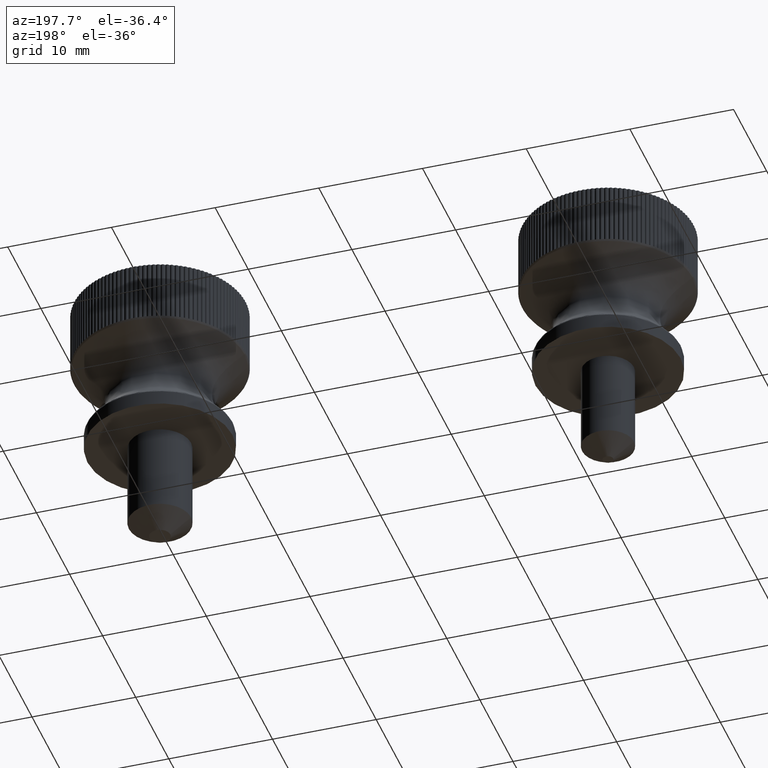
[diagram: clean part render]
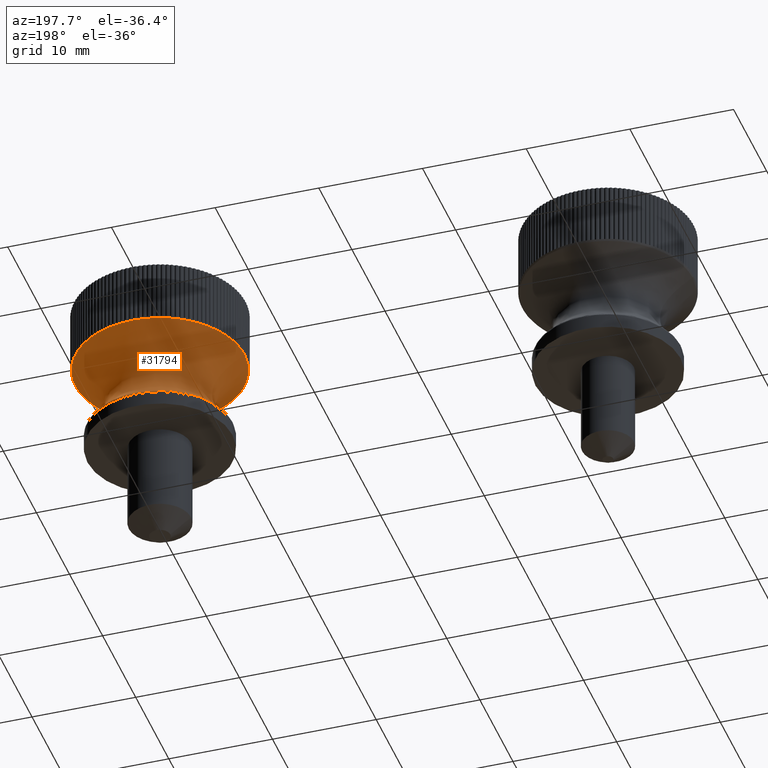
[diagram: same view with one face highlighted and labeled with its STEP entity id]
A machine part, auxiliary view. The second image highlights one B-rep face of the part: STEP entity #31794.
In plain terms, the highlighted face is a freeform B-spline surface patch.
Its self-contained STEP definition (entity closure, byte-faithful):
#3395=B_SPLINE_CURVE_WITH_KNOTS('',3,(#60871,#60872,#60873,#60874,#60875,
#60876,#60877,#60878,#60879,#60880),.UNSPECIFIED.,.T.,.F.,(4,1,1,1,1,1,
1,4),(0.,0.897597901025655,1.79519580205131,2.69279370307697,3.59039160410262,
4.48798950512828,5.38558740615393,6.28318530717959),.UNSPECIFIED.);
#3396=B_SPLINE_CURVE_WITH_KNOTS('',3,(#60950,#60951,#60952,#60953,#60954,
#60955),.UNSPECIFIED.,.F.,.F.,(4,2,4),(0.00706038556069299,0.438881228920565,
0.991385236136452),.UNSPECIFIED.);
#3397=B_SPLINE_CURVE_WITH_KNOTS('',3,(#60956,#60957,#60958,#60959,#60960,
#60961,#60962,#60963,#60964,#60965,#60966,#60967,#60968,#60969,#60970,#60971,
#60972),.UNSPECIFIED.,.T.,.F.,(4,1,1,1,1,1,1,1,1,1,1,1,1,1,4),(-3.14159265358979,
-2.69279370307697,-2.24399475256414,-1.79519580205131,-1.34639685153848,
-0.897597901025655,-0.448798950512828,-0.149599650170943,0.448798950512828,
0.897597901025655,1.34639685153848,1.79519580205131,2.24399475256414,2.69279370307697,
3.14159265358979),.UNSPECIFIED.);
#4606=B_SPLINE_SURFACE_WITH_KNOTS('',3,3,((#60881,#60882,#60883,#60884),
(#60885,#60886,#60887,#60888),(#60889,#60890,#60891,#60892),(#60893,#60894,
#60895,#60896),(#60897,#60898,#60899,#60900),(#60901,#60902,#60903,#60904),
(#60905,#60906,#60907,#60908),(#60909,#60910,#60911,#60912),(#60913,#60914,
#60915,#60916),(#60917,#60918,#60919,#60920),(#60921,#60922,#60923,#60924),
(#60925,#60926,#60927,#60928),(#60929,#60930,#60931,#60932),(#60933,#60934,
#60935,#60936),(#60937,#60938,#60939,#60940),(#60941,#60942,#60943,#60944),
(#60945,#60946,#60947,#60948)),.UNSPECIFIED.,.T.,.F.,.F.,(4,1,1,1,1,1,1,
1,1,1,1,1,1,1,4),(4,4),(-5.24696346380969E-33,0.0714285714285714,0.142857142857143,
0.214285714285714,0.285714285714286,0.357142857142857,0.428571428571429,
0.476190476190476,0.571428571428571,0.619047619047619,0.714285714285714,
0.785714285714286,0.857142857142857,0.928571428571429,1.),(0.00706038556069277,
0.991385236136452),.UNSPECIFIED.);
#7158=FACE_OUTER_BOUND('',#9342,.T.);
#9342=EDGE_LOOP('',(#25642,#25643,#25644,#25645));
#14054=VERTEX_POINT('',#60858);
#14056=VERTEX_POINT('',#60949);
#18039=EDGE_CURVE('',#14054,#14054,#3395,.T.);
#18040=EDGE_CURVE('',#14054,#14056,#3396,.T.);
#18041=EDGE_CURVE('',#14056,#14056,#3397,.T.);
#25642=ORIENTED_EDGE('',*,*,#18039,.F.);
#25643=ORIENTED_EDGE('',*,*,#18040,.T.);
#25644=ORIENTED_EDGE('',*,*,#18041,.F.);
#25645=ORIENTED_EDGE('',*,*,#18040,.F.);
#31794=ADVANCED_FACE('',(#7158),#4606,.T.);
#60858=CARTESIAN_POINT('',(-6.93627314721261,-1.18558281596421E-15,1.55888525799984));
#60871=CARTESIAN_POINT('Ctrl Pts',(-6.9410122677611,0.000142491652813912,
1.55888525799984));
#60872=CARTESIAN_POINT('Ctrl Pts',(-6.94073269133758,2.06964195002988,1.55888525799984));
#60873=CARTESIAN_POINT('Ctrl Pts',(-4.95034509371512,6.20569705457734,1.55888525799984));
#60874=CARTESIAN_POINT('Ctrl Pts',(1.76796414997845,7.74568170890814,1.55888525799984));
#60875=CARTESIAN_POINT('Ctrl Pts',(7.15027366841787,3.44311571488876,1.55888525799984));
#60876=CARTESIAN_POINT('Ctrl Pts',(7.15738775485074,-3.44652091877162,1.55888525799984));
#60877=CARTESIAN_POINT('Ctrl Pts',(1.76576836259289,-7.73728883380656,1.55888525799984));
#60878=CARTESIAN_POINT('Ctrl Pts',(-4.95202255225623,-6.21129969568504,
1.55888525799984));
#60879=CARTESIAN_POINT('Ctrl Pts',(-6.94129184418462,-2.06935696672425,
1.55888525799984));
#60880=CARTESIAN_POINT('Ctrl Pts',(-6.9410122677611,0.000142491652813912,
1.55888525799984));
#60881=CARTESIAN_POINT('Ctrl Pts',(-6.93659509277099,-2.64434204536289E-5,
1.55888525799984));
#60882=CARTESIAN_POINT('Ctrl Pts',(-3.99898448638526,-4.49854883233764E-5,
4.29342436986928));
#60883=CARTESIAN_POINT('Ctrl Pts',(-4.40387383724155,-5.47268835152633E-5,
6.75466806568818));
#60884=CARTESIAN_POINT('Ctrl Pts',(-8.15122335976201,-3.10737795189008E-5,
8.94261634545652));
#60885=CARTESIAN_POINT('Ctrl Pts',(-6.93655570876999,-1.03749061785009,
1.55888525799984));
#60886=CARTESIAN_POINT('Ctrl Pts',(-3.99898752326789,-0.598164021897022,
4.29342436986928));
#60887=CARTESIAN_POINT('Ctrl Pts',(-4.403881670935,-0.658734820782433,6.75466806568819));
#60888=CARTESIAN_POINT('Ctrl Pts',(-8.15117707944946,-1.2191597818023,8.94261634545652));
#60889=CARTESIAN_POINT('Ctrl Pts',(-6.46308137475766,-3.11256940948825,
1.55888525799984));
#60890=CARTESIAN_POINT('Ctrl Pts',(-3.72594845020308,-1.79440682829829,
4.29342436986928));
#60891=CARTESIAN_POINT('Ctrl Pts',(-4.10318422458277,-1.97608592128289,
6.75466806568818));
#60892=CARTESIAN_POINT('Ctrl Pts',(-7.59479531000307,-3.65759398381809,
8.94261634545651));
#60893=CARTESIAN_POINT('Ctrl Pts',(-4.47295872184112,-5.60896599974282,
1.55888525799984));
#60894=CARTESIAN_POINT('Ctrl Pts',(-2.57870061478446,-3.23378001637687,
4.29342436986928));
#60895=CARTESIAN_POINT('Ctrl Pts',(-2.83979175682371,-3.56122545468017,
6.75466806568817));
#60896=CARTESIAN_POINT('Ctrl Pts',(-5.25619343973525,-6.59112058145961,
8.9426163454565));
#60897=CARTESIAN_POINT('Ctrl Pts',(-1.59595728182452,-6.99323126397291,
1.55888525799984));
#60898=CARTESIAN_POINT('Ctrl Pts',(-0.920165162855635,-4.0314680861249,
4.29342436986927));
#60899=CARTESIAN_POINT('Ctrl Pts',(-1.01334528849677,-4.43961713355039,
6.75466806568817));
#60900=CARTESIAN_POINT('Ctrl Pts',(-1.8754164114823,-8.21777677329334,8.9426163454565));
#60901=CARTESIAN_POINT('Ctrl Pts',(1.59531222920229,-6.99348773614617,1.55888525799984));
#60902=CARTESIAN_POINT('Ctrl Pts',(0.91989036600288,-4.03156921862864,4.29342436986928));
#60903=CARTESIAN_POINT('Ctrl Pts',(1.01305959940466,-4.43972035678931,6.75466806568816));
#60904=CARTESIAN_POINT('Ctrl Pts',(1.87465840731279,-8.21807815487059,8.9426163454565));
#60905=CARTESIAN_POINT('Ctrl Pts',(4.47334228236746,-5.60797117948955,1.55888525799984));
#60906=CARTESIAN_POINT('Ctrl Pts',(2.57796903899002,-3.23303771902565,4.29342436986928));
#60907=CARTESIAN_POINT('Ctrl Pts',(2.83881996194001,-3.56037856671523,6.75466806568816));
#60908=CARTESIAN_POINT('Ctrl Pts',(5.25664416339439,-6.58995156381063,8.9426163454565));
#60909=CARTESIAN_POINT('Ctrl Pts',(6.23946520170621,-3.39020877999017,1.55888525799984));
#60910=CARTESIAN_POINT('Ctrl Pts',(3.59802952831995,-1.95423955104638,4.29342436986928));
#60911=CARTESIAN_POINT('Ctrl Pts',(3.9624876378636,-2.15206165405761,6.75466806568817));
#60912=CARTESIAN_POINT('Ctrl Pts',(7.33202296290484,-3.98384922751588,8.9426163454565));
#60913=CARTESIAN_POINT('Ctrl Pts',(7.17229747483685,-0.379481484938928,
1.55888525799984));
#60914=CARTESIAN_POINT('Ctrl Pts',(4.13396678016579,-0.219134788096569,
4.29342436986928));
#60915=CARTESIAN_POINT('Ctrl Pts',(4.55236562208221,-0.241384829866832,
6.75466806568816));
#60916=CARTESIAN_POINT('Ctrl Pts',(8.42819826415697,-0.445930359673868,
8.9426163454565));
#60917=CARTESIAN_POINT('Ctrl Pts',(6.74112220881939,2.47613920050433,1.55888525799984));
#60918=CARTESIAN_POINT('Ctrl Pts',(3.88650642503551,1.42786777823971,4.29342436986927));
#60919=CARTESIAN_POINT('Ctrl Pts',(4.28004475829902,1.57249940883918,6.75466806568817));
#60920=CARTESIAN_POINT('Ctrl Pts',(7.92152231529326,2.90972204997344,8.9426163454565));
#60921=CARTESIAN_POINT('Ctrl Pts',(4.76754469364469,5.36975566562131,1.55888525799984));
#60922=CARTESIAN_POINT('Ctrl Pts',(2.74886818005904,3.09555472852831,4.29342436986928));
#60923=CARTESIAN_POINT('Ctrl Pts',(3.02724725540437,3.40894945241564,6.75466806568816));
#60924=CARTESIAN_POINT('Ctrl Pts',(5.60236270905384,6.31002346719677,8.9426163454565));
#60925=CARTESIAN_POINT('Ctrl Pts',(1.9543276572283,6.99738667408694,1.55888525799984));
#60926=CARTESIAN_POINT('Ctrl Pts',(1.12617085742253,4.03385298858422,4.29342436986927));
#60927=CARTESIAN_POINT('Ctrl Pts',(1.24010458300473,4.4422416342415,6.75466806568817));
#60928=CARTESIAN_POINT('Ctrl Pts',(2.29653901361924,8.22265981396934,8.9426163454565));
#60929=CARTESIAN_POINT('Ctrl Pts',(-1.59757264271848,6.99173205713629,1.55888525799984));
#60930=CARTESIAN_POINT('Ctrl Pts',(-0.920660157411978,4.03073757760071,
4.29342436986928));
#60931=CARTESIAN_POINT('Ctrl Pts',(-1.01381431598822,4.43883599549537,6.75466806568816));
#60932=CARTESIAN_POINT('Ctrl Pts',(-1.87731462916363,8.21601504875496,8.9426163454565));
#60933=CARTESIAN_POINT('Ctrl Pts',(-4.47166126029394,5.60915551447088,1.55888525799984));
#60934=CARTESIAN_POINT('Ctrl Pts',(-2.57800781000917,3.23354607662608,4.29342436986928));
#60935=CARTESIAN_POINT('Ctrl Pts',(-2.83903843170414,3.56090797650199,6.75466806568817));
#60936=CARTESIAN_POINT('Ctrl Pts',(-5.25466878697257,6.59134328104892,8.9426163454565));
#60937=CARTESIAN_POINT('Ctrl Pts',(-6.46331767876363,3.11221563708956,1.55888525799984));
#60938=CARTESIAN_POINT('Ctrl Pts',(-3.72593022890732,1.7943073901539,4.29342436986928));
#60939=CARTESIAN_POINT('Ctrl Pts',(-4.10313722242205,1.97599464211061,6.75466806568817));
#60940=CARTESIAN_POINT('Ctrl Pts',(-7.59507299187836,3.65717826431859,8.9426163454565));
#60941=CARTESIAN_POINT('Ctrl Pts',(-6.93663447677198,1.03743773100918,1.55888525799984));
#60942=CARTESIAN_POINT('Ctrl Pts',(-3.99898144950263,0.598074050920375,
4.29342436986928));
#60943=CARTESIAN_POINT('Ctrl Pts',(-4.40386600354809,0.658625367015402,
6.75466806568818));
#60944=CARTESIAN_POINT('Ctrl Pts',(-8.15126964007456,1.21909763424326,8.94261634545652));
#60945=CARTESIAN_POINT('Ctrl Pts',(-6.93659509277099,-2.64434204536289E-5,
1.55888525799984));
#60946=CARTESIAN_POINT('Ctrl Pts',(-3.99898448638526,-4.49854883233764E-5,
4.29342436986928));
#60947=CARTESIAN_POINT('Ctrl Pts',(-4.40387383724155,-5.47268835152633E-5,
6.75466806568818));
#60948=CARTESIAN_POINT('Ctrl Pts',(-8.15122335976201,-3.10737795189008E-5,
8.94261634545652));
#60949=CARTESIAN_POINT('',(-8.15084504012234,-1.75274469428049E-15,8.9426163454565));
#60950=CARTESIAN_POINT('Ctrl Pts',(-6.93627314721261,-1.19417045999603E-17,
1.55888525799984));
#60951=CARTESIAN_POINT('Ctrl Pts',(-5.64758944876273,-2.54700537712144E-16,
2.75852070842793));
#60952=CARTESIAN_POINT('Ctrl Pts',(-5.00216506635853,-4.54827769370049E-16,
3.90555895576132));
#60953=CARTESIAN_POINT('Ctrl Pts',(-4.99722985155216,-8.13835133304365E-16,
6.40031004038283));
#60954=CARTESIAN_POINT('Ctrl Pts',(-6.04751153159294,-9.45556527831262E-16,
7.71451548886833));
#60955=CARTESIAN_POINT('Ctrl Pts',(-8.15084504012234,-1.00748758315437E-15,
8.9426163454565));
#60956=CARTESIAN_POINT('Ctrl Pts',(-8.15117333212948,2.02688610123641E-5,
8.94261634545648));
#60957=CARTESIAN_POINT('Ctrl Pts',(-8.15115849508877,-1.2191040241732,8.94261634545648));
#60958=CARTESIAN_POINT('Ctrl Pts',(-7.59480857500514,-3.65738650432062,
8.9426163454565));
#60959=CARTESIAN_POINT('Ctrl Pts',(-5.25602581266636,-6.59030474257856,
8.9426163454565));
#60960=CARTESIAN_POINT('Ctrl Pts',(-1.87547417704478,-8.2181584666592,8.94261634545649));
#60961=CARTESIAN_POINT('Ctrl Pts',(1.87499570834052,-8.21832555364966,8.94261634545651));
#60962=CARTESIAN_POINT('Ctrl Pts',(5.25688616423478,-6.59056315012199,8.94261634545649));
#60963=CARTESIAN_POINT('Ctrl Pts',(7.33194100023062,-3.98330331960709,8.9426163454565));
#60964=CARTESIAN_POINT('Ctrl Pts',(8.42812123831523,-0.446873616960778,
8.94261634545649));
#60965=CARTESIAN_POINT('Ctrl Pts',(7.86088313453604,3.33179503869472,8.9426163454565));
#60966=CARTESIAN_POINT('Ctrl Pts',(5.25297598715921,6.59021521319749,8.9426163454565));
#60967=CARTESIAN_POINT('Ctrl Pts',(1.87725224730608,8.21823265180251,8.94261634545649));
#60968=CARTESIAN_POINT('Ctrl Pts',(-1.87630261134814,8.21795848021363,8.94261634545651));
#60969=CARTESIAN_POINT('Ctrl Pts',(-5.25551532702722,6.59089113687171,8.94261634545648));
#60970=CARTESIAN_POINT('Ctrl Pts',(-7.59489759724946,3.65735925388466,8.94261634545651));
#60971=CARTESIAN_POINT('Ctrl Pts',(-8.1511881691702,1.21914456189523,8.94261634545648));
#60972=CARTESIAN_POINT('Ctrl Pts',(-8.15117333212948,2.02688610123625E-5,
8.94261634545648));